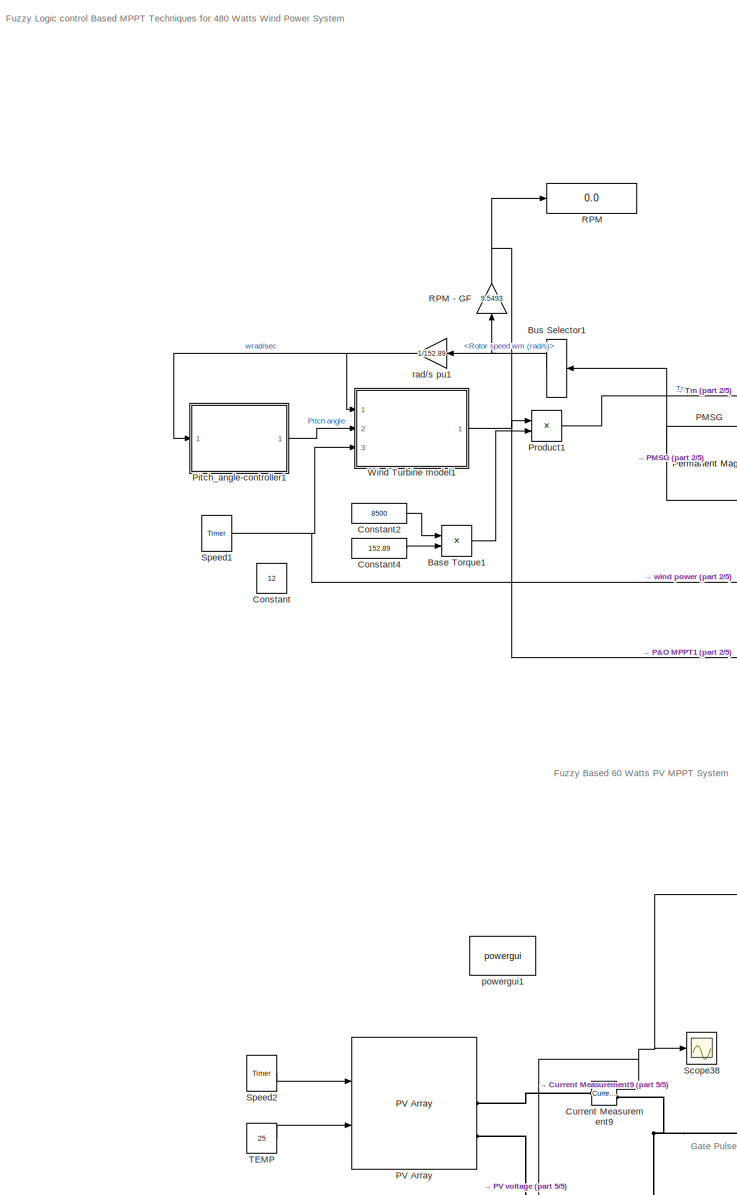
[diagram: root canvas - part 1/5, middle left region]
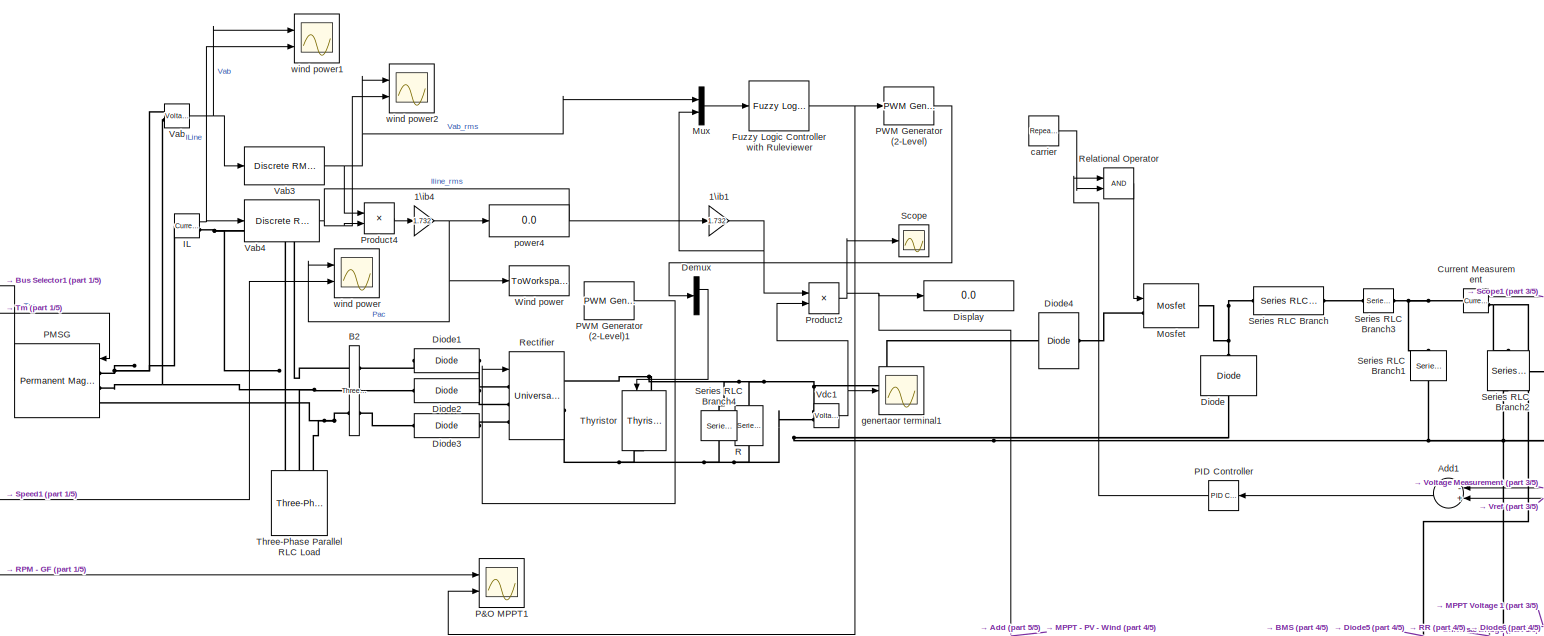
[diagram: root canvas - part 2/5, top center region]
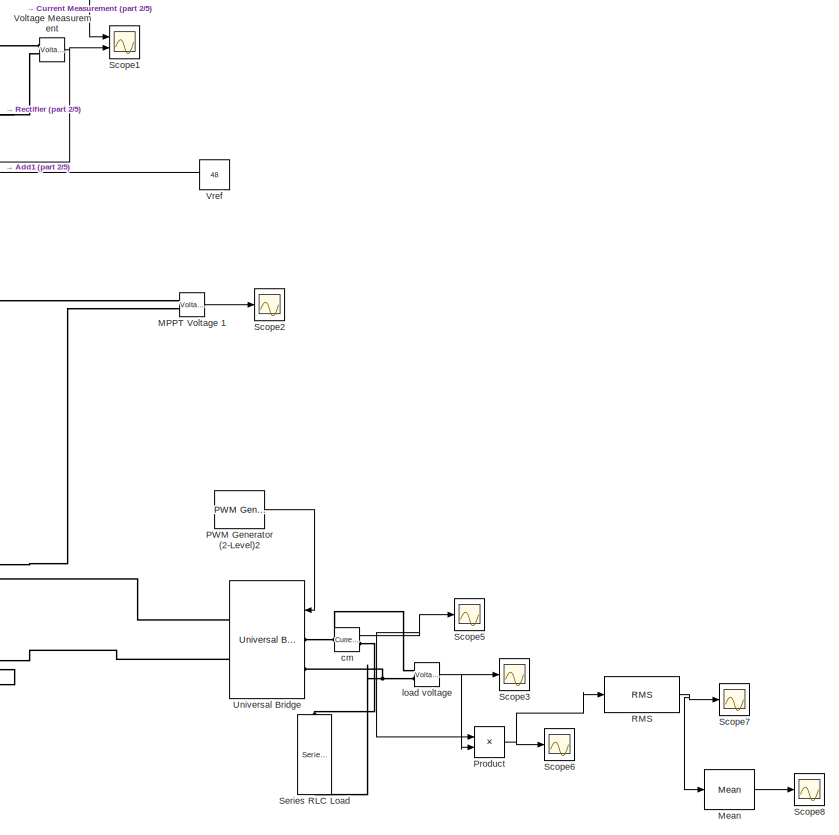
[diagram: root canvas - part 3/5, middle right region]
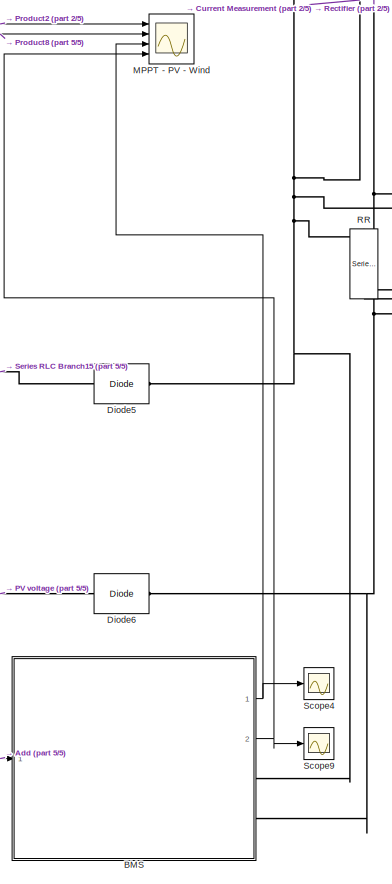
[diagram: root canvas - part 4/5, bottom center region]
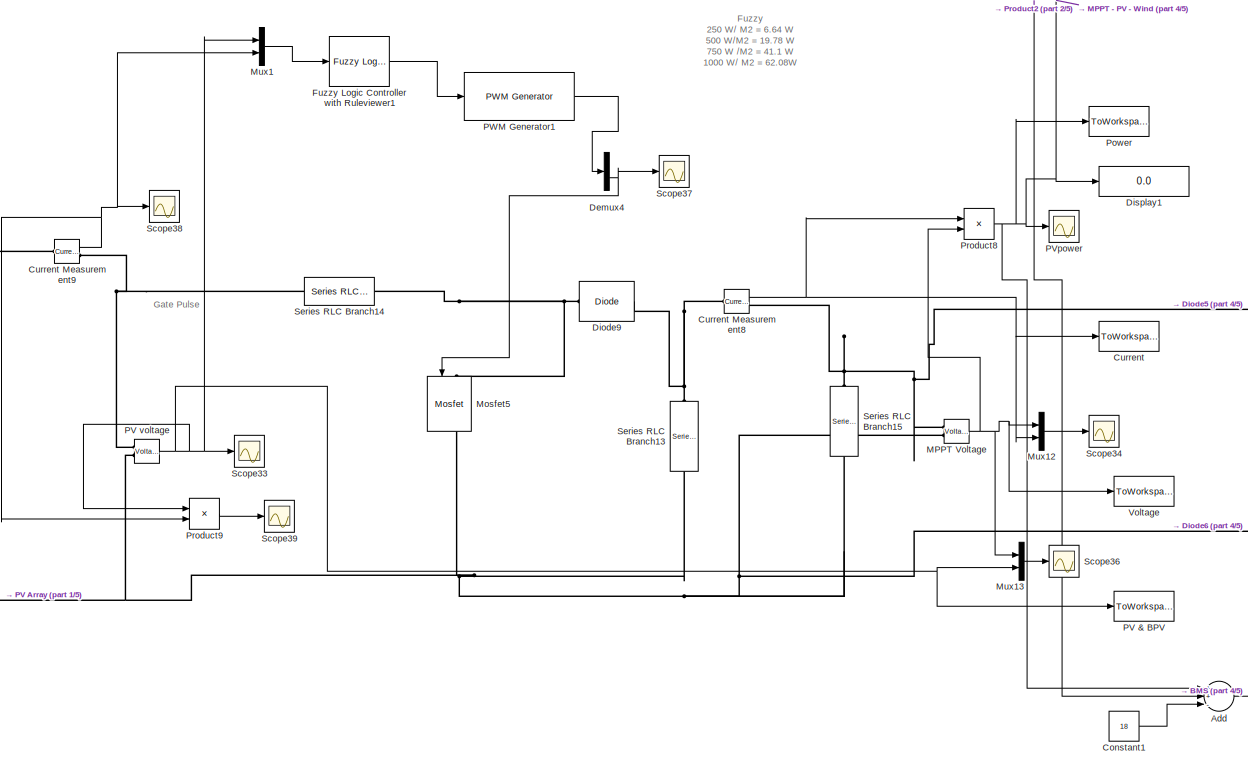
[diagram: root canvas - part 5/5, bottom center region]
MODEL slx_5a0d2a66a7e1
KIND model
CONFIG AbsTol = auto
CONFIG EnableMultiTasking = off
CONFIG FixedStep = auto
CONFIG MaxStep = 1e-4
CONFIG MinStep = auto
CONFIG RelTol = 1e-5
CONFIG SampleTimeConstraint = Unconstrained
CONFIG Solver = VariableStepAuto
CONFIG SolverName = VariableStepAuto
CONFIG StartTime = 0.0
CONFIG StopTime = 3
BLOCK [Gain] 1\ib1
  Gain = 1.732
BLOCK [Gain] 1\ib4
  Gain = 1.732
BLOCK [Sum] Add
  InputSameDT = off
  Inputs = ++-
  OutDataTypeStr = Inherit: Inherit via internal rule
  Ports = [3, 1]
  SaturateOnIntegerOverflow = off
BLOCK [Sum] Add1
  InputSameDT = off
  Inputs = -+
  OutDataTypeStr = Inherit: Inherit via internal rule
  Ports = [2, 1]
  SaturateOnIntegerOverflow = off
BLOCK [Reference] B2   REF=powerlib/Measurements/Three-Phase
V-I Measurement
  Ports = [0, 0, 0, 0, 0, 3, 3]
  SourceBlock = powerlib/Measurements/Three-Phase\nV-I Measurement
  SourceProductBaseCode = PS
  SourceProductName = Simscape Electrical
  SourceType = Three-Phase VI Measurement
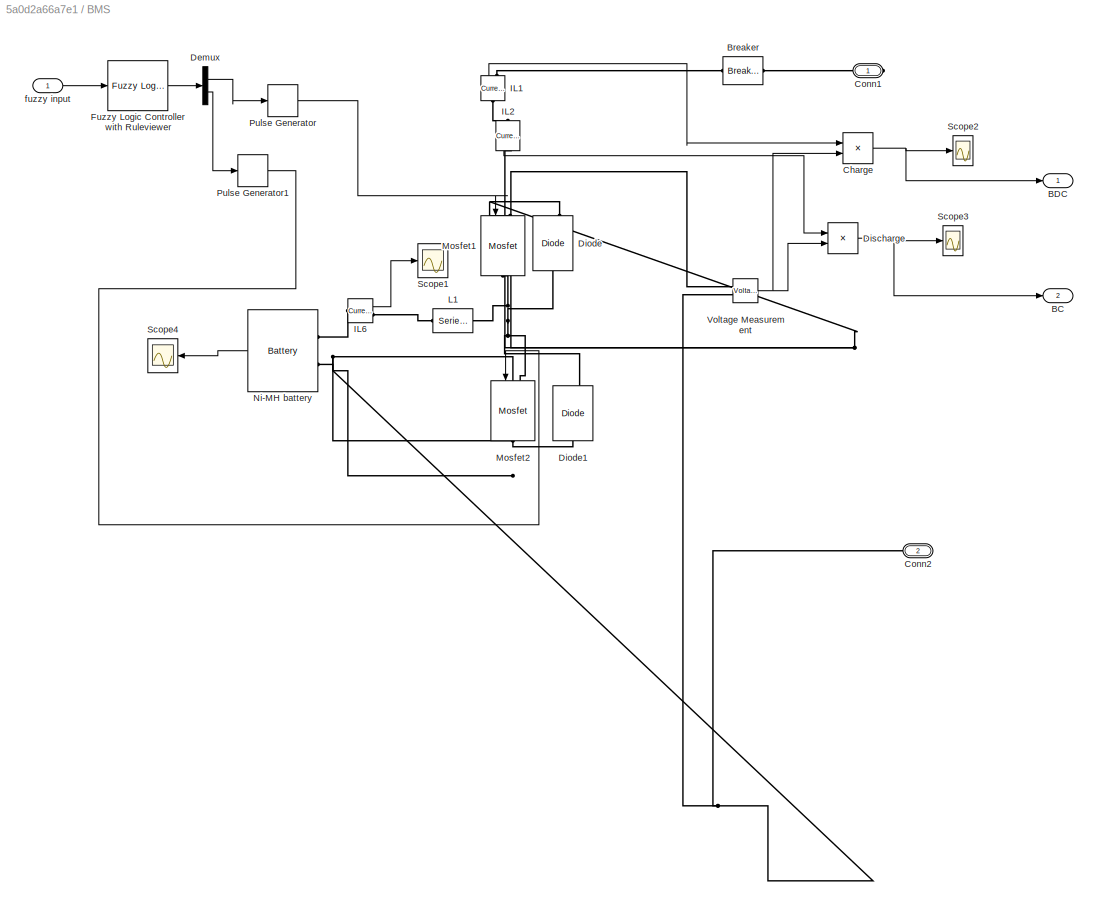
BLOCK [SubSystem] BMS 
  Ports = [1, 2, 0, 0, 0, 0, 2]
  RequestExecContextInheritance = off
BLOCK [Reference] BMS / Ni-MH battery   REF=electricdrivelib/Extra Sources/Battery
  Ports = [0, 1, 0, 0, 0, 2]
  SourceBlock = electricdrivelib/Extra Sources/Battery
  SourceProductBaseCode = PS
  SourceProductName = Simscape Electrical
  SourceType = Battery
BLOCK [Outport] BMS /BC 
  IconDisplay = Port number
  Port = 2
BLOCK [Outport] BMS /BDC
  IconDisplay = Port number
BLOCK [Reference] BMS /Breaker  REF=powerlib/Elements/Breaker
  Ports = [0, 0, 0, 0, 0, 1, 1]
  SourceBlock = powerlib/Elements/Breaker
  SourceProductBaseCode = PS
  SourceProductName = Simscape Electrical
  SourceType = Breaker
BLOCK [Product] BMS /Charge 
  InputSameDT = off
  OutDataTypeStr = Inherit: Inherit via internal rule
  Ports = [2, 1]
  RndMeth = Floor
  SaturateOnIntegerOverflow = off
BLOCK [PMIOPort] BMS /Conn1
  Side = Right
BLOCK [PMIOPort] BMS /Conn2
  Port = 2
  Side = Right
BLOCK [Demux] BMS /Demux
  DisplayOption = bar
  Outputs = 2
  Ports = [1, 2]
BLOCK [Reference] BMS /Diode  REF=powerlib/Power
Electronics/Diode
  Ports = [0, 1, 0, 0, 0, 1, 1]
  SourceBlock = powerlib/Power\nElectronics/Diode
  SourceProductBaseCode = PS
  SourceProductName = Simscape Electrical
  SourceType = Diode
BLOCK [Reference] BMS /Diode1  REF=powerlib/Power
Electronics/Diode
  Ports = [0, 1, 0, 0, 0, 1, 1]
  SourceBlock = powerlib/Power\nElectronics/Diode
  SourceProductBaseCode = PS
  SourceProductName = Simscape Electrical
  SourceType = Diode
BLOCK [Product] BMS /Discharge 
  InputSameDT = off
  OutDataTypeStr = Inherit: Inherit via internal rule
  Ports = [2, 1]
  RndMeth = Floor
  SaturateOnIntegerOverflow = off
BLOCK [Reference] BMS /Fuzzy Logic Controller with Ruleviewer  REF=fuzblock/Fuzzy Logic   (lib defined in mdl_858b3b3e7478)
Controller 
with Ruleviewer
  Ports = [1, 1]
  SourceBlock = fuzblock/Fuzzy Logic \nController \nwith Ruleviewer
  SourceProductBaseCode = FL
  SourceProductName = Fuzzy Logic Toolbox
  SourceType = Fuzzy Inference System
BLOCK [Reference] BMS /IL1  REF=powerlib/Measurements/Current Measurement
  Ports = [0, 1, 0, 0, 0, 1, 1]
  SourceBlock = powerlib/Measurements/Current Measurement
  SourceProductBaseCode = PS
  SourceProductName = Simscape Electrical
  SourceType = Current Measurement
BLOCK [Reference] BMS /IL2  REF=powerlib/Measurements/Current Measurement
  Ports = [0, 1, 0, 0, 0, 1, 1]
  SourceBlock = powerlib/Measurements/Current Measurement
  SourceProductBaseCode = PS
  SourceProductName = Simscape Electrical
  SourceType = Current Measurement
BLOCK [Reference] BMS /IL6  REF=powerlib/Measurements/Current Measurement
  Ports = [0, 1, 0, 0, 0, 1, 1]
  SourceBlock = powerlib/Measurements/Current Measurement
  SourceProductBaseCode = PS
  SourceProductName = Simscape Electrical
  SourceType = Current Measurement
BLOCK [Reference] BMS /L1  REF=powerlib/Elements/Series RLC Branch
  AttributesFormatString = \n
  Ports = [0, 0, 0, 0, 0, 1, 1]
  SourceBlock = powerlib/Elements/Series RLC Branch
  SourceProductBaseCode = PS
  SourceProductName = Simscape Electrical
  SourceType = Series RLC Branch
BLOCK [Reference] BMS /Mosfet1  REF=powerlib/Power
Electronics/Mosfet
  Ports = [1, 0, 0, 0, 0, 1, 1]
  SourceBlock = powerlib/Power\nElectronics/Mosfet
  SourceProductBaseCode = PS
  SourceProductName = Simscape Electrical
  SourceType = Mosfet
BLOCK [Reference] BMS /Mosfet2  REF=powerlib/Power
Electronics/Mosfet
  Ports = [1, 0, 0, 0, 0, 1, 1]
  SourceBlock = powerlib/Power\nElectronics/Mosfet
  SourceProductBaseCode = PS
  SourceProductName = Simscape Electrical
  SourceType = Mosfet
BLOCK [DiscretePulseGenerator] BMS /Pulse Generator
  Period = 10
  PhaseDelay = 2
  Ports = [1, 1]
  PulseType = Time based
  PulseWidth = 50
  TimeSource = Use external signal
BLOCK [DiscretePulseGenerator] BMS /Pulse Generator1
  Period = 10
  PhaseDelay = 1
  Ports = [1, 1]
  PulseType = Time based
  PulseWidth = 50
  TimeSource = Use external signal
BLOCK [Scope] BMS /Scope1
  Floating = off
  NumInputPorts = 1
  Ports = [1]
  ScopeSpecificationString = Simulink.scopes.TimeScopeBlockCfg('CurrentConfiguration', extmgr.ConfigurationSet(extmgr.Configuration('Core','General UI',true),extmgr.Configuration('Core','Source UI',true),extmgr.Configuration('Sources','WiredSimulink',true,'DataLoggingVariableName','ScopeData5'),extmgr.Configuration('Visuals','Time Domain',true,'SerializedDisplays',{struct('MinYLimReal','-0.36993','MaxYLimReal','2.4687','YLabe...<+1438ch>
BLOCK [Scope] BMS /Scope2
  Floating = off
  NumInputPorts = 1
  Ports = [1]
  ScopeSpecificationString = Simulink.scopes.TimeScopeBlockCfg('CurrentConfiguration', extmgr.ConfigurationSet(extmgr.Configuration('Core','General UI',true,'FigureColor',[1 1 1]),extmgr.Configuration('Core','Source UI',true),extmgr.Configuration('Sources','WiredSimulink',true,'DataLoggingVariableName','ScopeData1'),extmgr.Configuration('Visuals','Time Domain',true,'SerializedDisplays',{struct('MinYLimReal','-19.65052','MaxYL...<+1519ch>
BLOCK [Scope] BMS /Scope3
  Floating = off
  NumInputPorts = 1
  Ports = [1]
  ScopeSpecificationString = Simulink.scopes.TimeScopeBlockCfg('CurrentConfiguration', extmgr.ConfigurationSet(extmgr.Configuration('Core','General UI',true,'FigureColor',[1 1 1]),extmgr.Configuration('Core','Source UI',true),extmgr.Configuration('Sources','WiredSimulink',true,'DataLoggingVariableName','ScopeData4'),extmgr.Configuration('Visuals','Time Domain',true,'SerializedDisplays',{struct('MinYLimReal','-130.38357','MaxY...<+1530ch>
BLOCK [Scope] BMS /Scope4
  Floating = off
  NumInputPorts = 1
  Ports = [1]
  ScopeSpecificationString = Simulink.scopes.TimeScopeBlockCfg('CurrentConfiguration', extmgr.ConfigurationSet(extmgr.Configuration('Core','General UI',true),extmgr.Configuration('Core','Source UI',true),extmgr.Configuration('Sources','WiredSimulink',true,'DataLoggingVariableName','ScopeData1','DataLoggingSaveFormat','Array','DataLoggingDecimation','1','DataLoggingDecimateData',true),extmgr.Configuration('Visuals','Time Domai...<+1777ch>
BLOCK [Reference] BMS /Voltage Measurement  REF=powerlib/Measurements/Voltage Measurement
  Ports = [0, 1, 0, 0, 0, 2]
  SourceBlock = powerlib/Measurements/Voltage Measurement
  SourceProductBaseCode = PS
  SourceProductName = Simscape Electrical
  SourceType = Voltage Measurement
  UserDataPersistent = on
BLOCK [Inport] BMS /fuzzy input 
  IconDisplay = Port number
BLOCK [Product] Base Torque1
  InputSameDT = off
  Inputs = */
  OutDataTypeStr = Inherit: Inherit via internal rule
  Ports = [2, 1]
  SaturateOnIntegerOverflow = off
BLOCK [BusSelector] Bus Selector1
  OutputAsBus = off
  OutputSignals = Rotor speed wm (rad/s)
  Ports = [1, 1]
BLOCK [Constant] Constant
  Value = 12
BLOCK [Constant] Constant1
  Value = 18
BLOCK [Constant] Constant2
  Value = 8500
BLOCK [Constant] Constant4
  Value = 152.89
BLOCK [ToWorkspace] Current
  MaxDataPoints = inf
  Ports = [1]
  SampleTime = -1
  SaveFormat = Timeseries
  VariableName = cur
BLOCK [Reference] Current Measurement  REF=powerlib/Measurements/Current Measurement
  Ports = [0, 1, 0, 0, 0, 1, 1]
  SourceBlock = powerlib/Measurements/Current Measurement
  SourceProductBaseCode = PS
  SourceProductName = Simscape Electrical
  SourceType = Current Measurement
BLOCK [Reference] Current Measurement8  REF=powerlib/Measurements/Current Measurement
  Ports = [0, 1, 0, 0, 0, 1, 1]
  SourceBlock = powerlib/Measurements/Current Measurement
  SourceProductBaseCode = PS
  SourceProductName = Simscape Electrical
  SourceType = Current Measurement
BLOCK [Reference] Current Measurement9  REF=powerlib/Measurements/Current Measurement
  Ports = [0, 1, 0, 0, 0, 1, 1]
  SourceBlock = powerlib/Measurements/Current Measurement
  SourceProductBaseCode = PS
  SourceProductName = Simscape Electrical
  SourceType = Current Measurement
BLOCK [Demux] Demux
  DisplayOption = bar
  Outputs = 2
  Ports = [1, 2]
BLOCK [Demux] Demux4
  DisplayOption = bar
  Outputs = 2
  Ports = [1, 2]
BLOCK [Reference] Diode  REF=powerlib/Power
Electronics/Diode
  Ports = [0, 0, 0, 0, 0, 1, 1]
  SourceBlock = powerlib/Power\nElectronics/Diode
  SourceProductBaseCode = PS
  SourceProductName = Simscape Electrical
  SourceType = Diode
BLOCK [Reference] Diode1  REF=powerlib/Power
Electronics/Diode
  Ports = [0, 0, 0, 0, 0, 1, 1]
  SourceBlock = powerlib/Power\nElectronics/Diode
  SourceProductBaseCode = PS
  SourceProductName = Simscape Electrical
  SourceType = Diode
BLOCK [Reference] Diode2  REF=powerlib/Power
Electronics/Diode
  Ports = [0, 0, 0, 0, 0, 1, 1]
  SourceBlock = powerlib/Power\nElectronics/Diode
  SourceProductBaseCode = PS
  SourceProductName = Simscape Electrical
  SourceType = Diode
BLOCK [Reference] Diode3  REF=powerlib/Power
Electronics/Diode
  Ports = [0, 0, 0, 0, 0, 1, 1]
  SourceBlock = powerlib/Power\nElectronics/Diode
  SourceProductBaseCode = PS
  SourceProductName = Simscape Electrical
  SourceType = Diode
BLOCK [Reference] Diode4  REF=powerlib/Power
Electronics/Diode
  Ports = [0, 0, 0, 0, 0, 1, 1]
  SourceBlock = powerlib/Power\nElectronics/Diode
  SourceProductBaseCode = PS
  SourceProductName = Simscape Electrical
  SourceType = Diode
BLOCK [Reference] Diode5  REF=powerlib/Power
Electronics/Diode
  Ports = [0, 0, 0, 0, 0, 1, 1]
  SourceBlock = powerlib/Power\nElectronics/Diode
  SourceProductBaseCode = PS
  SourceProductName = Simscape Electrical
  SourceType = Diode
BLOCK [Reference] Diode6  REF=powerlib/Power
Electronics/Diode
  Ports = [0, 0, 0, 0, 0, 1, 1]
  SourceBlock = powerlib/Power\nElectronics/Diode
  SourceProductBaseCode = PS
  SourceProductName = Simscape Electrical
  SourceType = Diode
BLOCK [Reference] Diode9  REF=powerlib/Power
Electronics/Diode
  Ports = [0, 0, 0, 0, 0, 1, 1]
  SourceBlock = powerlib/Power\nElectronics/Diode
  SourceProductBaseCode = PS
  SourceProductName = Simscape Electrical
  SourceType = Diode
BLOCK [Display] Display
  Decimation = 1
  Ports = [1]
BLOCK [Display] Display1
  Decimation = 1
  Ports = [1]
BLOCK [Reference] Fuzzy Logic Controller with Ruleviewer  REF=fuzblock/Fuzzy Logic   (lib defined in mdl_858b3b3e7478)
Controller 
with Ruleviewer
  Ports = [1, 1]
  SourceBlock = fuzblock/Fuzzy Logic \nController \nwith Ruleviewer
  SourceProductBaseCode = FL
  SourceProductName = Fuzzy Logic Toolbox
  SourceType = Fuzzy Inference System
BLOCK [Reference] Fuzzy Logic Controller with Ruleviewer1  REF=fuzblock/Fuzzy Logic   (lib defined in mdl_858b3b3e7478)
Controller 
with Ruleviewer
  Ports = [1, 1]
  SourceBlock = fuzblock/Fuzzy Logic \nController \nwith Ruleviewer
  SourceProductBaseCode = FL
  SourceProductName = Fuzzy Logic Toolbox
  SourceType = Fuzzy Inference System
BLOCK [Reference] IL  REF=powerlib/Measurements/Current Measurement
  Ports = [0, 1, 0, 0, 0, 1, 1]
  SourceBlock = powerlib/Measurements/Current Measurement
  SourceProductBaseCode = PS
  SourceProductName = Simscape Electrical
  SourceType = Current Measurement
BLOCK [Scope] MPPT - PV - Wind 
  Floating = off
  NumInputPorts = 4
  Ports = [4]
  ScopeSpecificationString = Simulink.scopes.TimeScopeBlockCfg('CurrentConfiguration', extmgr.ConfigurationSet(extmgr.Configuration('Core','General UI',true,'FigureColor',[1 1 1]),extmgr.Configuration('Core','Source UI',true),extmgr.Configuration('Sources','WiredSimulink',true,'DataLogging',true,'DataLoggingVariableName','ScopeData2','DataLoggingSaveFormat','StructureWithTime','SampleTime','100e-6','DataLoggingDecimation','1'...<+4601ch>
BLOCK [Reference] MPPT Voltage   REF=powerlib/Measurements/Voltage Measurement
  Ports = [0, 1, 0, 0, 0, 2]
  SourceBlock = powerlib/Measurements/Voltage Measurement
  SourceProductBaseCode = PS
  SourceProductName = Simscape Electrical
  SourceType = Voltage Measurement
BLOCK [Reference] MPPT Voltage 1  REF=powerlib/Measurements/Voltage Measurement
  Ports = [0, 1, 0, 0, 0, 2]
  SourceBlock = powerlib/Measurements/Voltage Measurement
  SourceProductBaseCode = PS
  SourceProductName = Simscape Electrical
  SourceType = Voltage Measurement
BLOCK [Reference] Mean  REF=powerlib_meascontrol/Measurements/Mean
  Ports = [1, 1]
  SourceBlock = powerlib_meascontrol/Measurements/Mean
  SourceProductBaseCode = PS
  SourceProductName = Simscape Electrical
  SourceType = Mean
BLOCK [Reference] Mosfet  REF=powerlib/Power
Electronics/Mosfet
  Ports = [1, 0, 0, 0, 0, 1, 1]
  SourceBlock = powerlib/Power\nElectronics/Mosfet
  SourceProductBaseCode = PS
  SourceProductName = Simscape Electrical
  SourceType = Mosfet
BLOCK [Reference] Mosfet5  REF=powerlib/Power
Electronics/Mosfet
  Ports = [1, 1, 0, 0, 0, 1, 1]
  SourceBlock = powerlib/Power\nElectronics/Mosfet
  SourceProductBaseCode = PS
  SourceProductName = Simscape Electrical
  SourceType = Mosfet
BLOCK [Mux] Mux
  DisplayOption = bar
  Inputs = 2
  Ports = [2, 1]
BLOCK [Mux] Mux1
  DisplayOption = bar
  Inputs = 2
  Ports = [2, 1]
BLOCK [Mux] Mux12
  DisplayOption = bar
  Inputs = 2
  Ports = [2, 1]
BLOCK [Mux] Mux13
  DisplayOption = bar
  Inputs = 2
  Ports = [2, 1]
BLOCK [Scope] P&O MPPT1
  Floating = off
  NumInputPorts = 2
  Ports = [2]
  ScopeSpecificationString = Simulink.scopes.TimeScopeBlockCfg('CurrentConfiguration', extmgr.ConfigurationSet(extmgr.Configuration('Core','General UI',true,'FigureColor',[1 1 1]),extmgr.Configuration('Core','Source UI',true),extmgr.Configuration('Sources','WiredSimulink',true,'DataLogging',true,'DataLoggingVariableName','ScopeData1','DataLoggingSaveFormat','StructureWithTime','SampleTime','100e-6','DataLoggingDecimation','1'...<+3546ch>
BLOCK [Reference] PID Controller  REF=simulink_need_slupdate/PID Controller
  Ports = [1, 1]
  SourceBlock = simulink_need_slupdate/PID Controller
  SourceProductBaseCode = SL
  SourceProductName = Simulink
  SourceType = PID Controller
BLOCK [Reference] PMSG  REF=powerlib/Machines/Permanent Magnet
Synchronous Machine
  Ports = [1, 1, 0, 0, 0, 3]
  SourceBlock = powerlib/Machines/Permanent Magnet\nSynchronous Machine
  SourceProductBaseCode = PS
  SourceProductName = Simscape Electrical
  SourceType = Permanent Magnet Synchronous Machine
BLOCK [ToWorkspace] PV & BPV
  MaxDataPoints = inf
  Ports = [1]
  SampleTime = -1
  SaveFormat = Timeseries
  VariableName = vs
BLOCK [Reference] PV Array  REF=re_lib/Solar/PV Array
  Ports = [2, 1, 0, 0, 0, 0, 2]
  SourceBlock = re_lib/Solar/PV Array
  SourceProductBaseCode = PS
  SourceProductName = Simscape Electrical
  SourceType = PV array
BLOCK [Reference] PV voltage   REF=powerlib/Measurements/Voltage Measurement
  Ports = [0, 1, 0, 0, 0, 2]
  SourceBlock = powerlib/Measurements/Voltage Measurement
  SourceProductBaseCode = PS
  SourceProductName = Simscape Electrical
  SourceType = Voltage Measurement
BLOCK [Scope] PVpower
  Floating = off
  NumInputPorts = 1
  Ports = [1]
  ScopeSpecificationString = Simulink.scopes.TimeScopeBlockCfg('CurrentConfiguration', extmgr.ConfigurationSet(extmgr.Configuration('Core','General UI',true,'FigureColor',[1 1 1]),extmgr.Configuration('Core','Source UI',true),extmgr.Configuration('Sources','WiredSimulink',true,'DataLoggingVariableName','ScopeData1','DataLoggingSaveFormat','StructureWithTime','DataLoggingMaxPoints','50000000','DataLoggingLimitDataPoints',true,...<+3004ch>
BLOCK [Reference] PWM Generator (2-Level)  REF=powerlib_meascontrol/Pulse & Signal
Generators/PWM Generator
(2-Level)
  Ports = [1, 1]
  SourceBlock = powerlib_meascontrol/Pulse & Signal\nGenerators/PWM Generator\n(2-Level)
  SourceProductBaseCode = PS
  SourceProductName = Simscape Electrical
  SourceType = PWM Generator (2-Level)
BLOCK [Reference] PWM Generator (2-Level)1  REF=powerlib_meascontrol/Pulse & Signal
Generators/PWM Generator
(2-Level)
  Ports = [0, 1]
  SourceBlock = powerlib_meascontrol/Pulse & Signal\nGenerators/PWM Generator\n(2-Level)
  SourceProductBaseCode = PS
  SourceProductName = Simscape Electrical
  SourceType = PWM Generator (2-Level)
BLOCK [Reference] PWM Generator (2-Level)2  REF=powerlib_meascontrol/Pulse & Signal
Generators/PWM Generator
(2-Level)
  Ports = [0, 1]
  SourceBlock = powerlib_meascontrol/Pulse & Signal\nGenerators/PWM Generator\n(2-Level)
  SourceProductBaseCode = PS
  SourceProductName = Simscape Electrical
  SourceType = PWM Generator (2-Level)
BLOCK [Reference] PWM Generator1  REF=powerlib_extras/Control 
Blocks/PWM Generator
  Ports = [1, 1]
  SourceBlock = powerlib_extras/Control \nBlocks/PWM Generator
  SourceProductBaseCode = PS
  SourceProductName = Simscape Electrical
  SourceType = PWM Generator
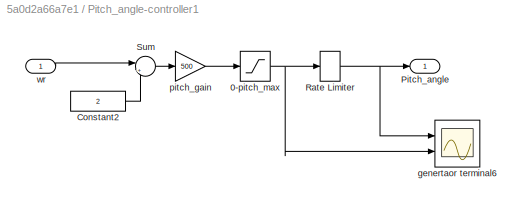
BLOCK [SubSystem] Pitch_angle-controller1
  Ports = [1, 1]
  RequestExecContextInheritance = off
BLOCK [Saturate] Pitch_angle-controller1/0-pitch_max
  InputPortMap = u0
  LowerLimit = 0
  Ports = [1, 1]
  UpperLimit = 45
BLOCK [Constant] Pitch_angle-controller1/Constant2
  Value = 2
BLOCK [Outport] Pitch_angle-controller1/Pitch_angle
  IconDisplay = Port number
BLOCK [RateLimiter] Pitch_angle-controller1/Rate Limiter   
  FallingSlewLimit = -2
  RisingSlewLimit = 2
BLOCK [Sum] Pitch_angle-controller1/Sum
  IconShape = round
  InputSameDT = off
  Inputs = |+-
  OutDataTypeStr = Inherit: Inherit via internal rule
  Ports = [2, 1]
BLOCK [Scope] Pitch_angle-controller1/genertaor terminal6
  Floating = off
  NumInputPorts = 2
  Ports = [2]
  ScopeSpecificationString = Simulink.scopes.TimeScopeBlockCfg('CurrentConfiguration', extmgr.ConfigurationSet(extmgr.Configuration('Core','General UI',true),extmgr.Configuration('Core','Source UI',true),extmgr.Configuration('Sources','WiredSimulink',true,'DataLogging',true,'DataLoggingVariableName','ScopeData9','DataLoggingSaveFormat','StructureWithTime','SampleTime','100e-6','DataLoggingDecimation','1','DataLoggingDecimateD...<+2358ch>
BLOCK [Gain] Pitch_angle-controller1/pitch_gain
  Gain = 500
BLOCK [Inport] Pitch_angle-controller1/wr
  IconDisplay = Port number
BLOCK [ToWorkspace] Power
  MaxDataPoints = inf
  Ports = [1]
  SampleTime = -1
  SaveFormat = Timeseries
  VariableName = po
BLOCK [Product] Product
  InputSameDT = off
  OutDataTypeStr = Inherit: Inherit via internal rule
  Ports = [2, 1]
  RndMeth = Floor
  SaturateOnIntegerOverflow = off
BLOCK [Product] Product1
  InputSameDT = off
  OutDataTypeStr = Inherit: Inherit via internal rule
  Ports = [2, 1]
  SaturateOnIntegerOverflow = off
BLOCK [Product] Product2
  InputSameDT = off
  OutDataTypeStr = Inherit: Inherit via internal rule
  Ports = [2, 1]
  SaturateOnIntegerOverflow = off
BLOCK [Product] Product4
  InputSameDT = off
  OutDataTypeStr = Inherit: Inherit via internal rule
  Ports = [2, 1]
  SaturateOnIntegerOverflow = off
BLOCK [Product] Product8
  InputSameDT = off
  OutDataTypeStr = Inherit: Inherit via internal rule
  Ports = [2, 1]
  SaturateOnIntegerOverflow = off
BLOCK [Product] Product9
  InputSameDT = off
  OutDataTypeStr = Inherit: Inherit via internal rule
  Ports = [2, 1]
  SaturateOnIntegerOverflow = off
BLOCK [Reference] R  REF=powerlib/Elements/Series RLC Branch
  Ports = [0, 0, 0, 0, 0, 1, 1]
  SourceBlock = powerlib/Elements/Series RLC Branch
  SourceProductBaseCode = PS
  SourceProductName = Simscape Electrical
  SourceType = Series RLC Branch
BLOCK [Reference] RMS  REF=dspstat3/RMS
  Ports = [1, 1]
  SourceBlock = dspstat3/RMS
  SourceProductBaseCode = DS
  SourceProductName = DSP System Toolbox
  SourceType = RMS
  UserDataPersistent = on
BLOCK [Display] RPM 
  Decimation = 1
  Ports = [1]
BLOCK [Gain] RPM - GF
  Gain = 9.5493
BLOCK [Reference] RR  REF=powerlib/Elements/Series RLC Branch
  Ports = [0, 0, 0, 0, 0, 1, 1]
  SourceBlock = powerlib/Elements/Series RLC Branch
  SourceProductBaseCode = PS
  SourceProductName = Simscape Electrical
  SourceType = Series RLC Branch
BLOCK [Reference] Rectifier  REF=powerlib/Power
Electronics/Universal Bridge
  AttributesFormatString = \n
  Ports = [1, 0, 0, 0, 0, 3, 2]
  SourceBlock = powerlib/Power\nElectronics/Universal Bridge
  SourceProductBaseCode = PS
  SourceProductName = Simscape Electrical
  SourceType = Universal Bridge
BLOCK [RelationalOperator] Relational Operator
  InputSameDT = off
  OutDataTypeStr = boolean
  Ports = [2, 1]
BLOCK [Scope] Scope
  Floating = off
  NumInputPorts = 1
  Ports = [1]
  ScopeSpecificationString = Simulink.scopes.TimeScopeBlockCfg('CurrentConfiguration', extmgr.ConfigurationSet(extmgr.Configuration('Core','General UI',true,'FigureColor',[1 1 1]),extmgr.Configuration('Core','Source UI',true),extmgr.Configuration('Sources','WiredSimulink',true,'DataLoggingVariableName','ScopeData2'),extmgr.Configuration('Visuals','Time Domain',true,'SerializedDisplays',{struct('MinYLimReal','-1.18265','MaxYLi...<+1697ch>
BLOCK [Scope] Scope1
  Floating = off
  NumInputPorts = 2
  Ports = [2]
  ScopeSpecificationString = Simulink.scopes.TimeScopeBlockCfg('CurrentConfiguration', extmgr.ConfigurationSet(extmgr.Configuration('Core','General UI',true,'FigureColor',[1 1 1]),extmgr.Configuration('Core','Source UI',true),extmgr.Configuration('Sources','WiredSimulink',true,'DataLoggingSaveFormat','StructureWithTime','DataLoggingMaxPoints','5000000','DataLoggingDecimation','1','DataLoggingDecimateData',true,'DataLoggingVar...<+2565ch>
BLOCK [Scope] Scope2
  Floating = off
  NumInputPorts = 1
  Ports = [1]
  ScopeSpecificationString = Simulink.scopes.TimeScopeBlockCfg('CurrentConfiguration', extmgr.ConfigurationSet(extmgr.Configuration('Core','General UI',true,'FigureColor',[1 1 1]),extmgr.Configuration('Core','Source UI',true),extmgr.Configuration('Sources','WiredSimulink',true,'DataLoggingVariableName','ScopeData1','DataLoggingSaveFormat','StructureWithTime','DataLoggingMaxPoints','50000000','DataLoggingLimitDataPoints',true,...<+2905ch>
BLOCK [Scope] Scope3
  Floating = off
  NumInputPorts = 1
  Ports = [1]
  ScopeSpecificationString = Simulink.scopes.TimeScopeBlockCfg('CurrentConfiguration', extmgr.ConfigurationSet(extmgr.Configuration('Core','General UI',true,'FigureColor',[1 1 1]),extmgr.Configuration('Core','Source UI',true),extmgr.Configuration('Sources','WiredSimulink',true,'DataLoggingVariableName','ScopeData3','DataLoggingSaveFormat','StructureWithTime','DataLoggingMaxPoints','50000000','DataLoggingLimitDataPoints',true,...<+2861ch>
BLOCK [Scope] Scope33
  Floating = off
  NumInputPorts = 1
  Ports = [1]
  ScopeSpecificationString = Simulink.scopes.TimeScopeBlockCfg('CurrentConfiguration', extmgr.ConfigurationSet(extmgr.Configuration('Core','General UI',true,'FigureColor',[1 1 1]),extmgr.Configuration('Core','Source UI',true),extmgr.Configuration('Sources','WiredSimulink',true,'DataLoggingSaveFormat','StructureWithTime','DataLoggingMaxPoints','50000000','DataLoggingLimitDataPoints',true,'DataLoggingDecimation','1','DataLoggin...<+2905ch>
BLOCK [Scope] Scope34
  Floating = off
  NumInputPorts = 1
  Ports = [1]
  ScopeSpecificationString = Simulink.scopes.TimeScopeBlockCfg('CurrentConfiguration', extmgr.ConfigurationSet(extmgr.Configuration('Core','General UI',true,'FigureColor',[1 1 1]),extmgr.Configuration('Core','Source UI',true),extmgr.Configuration('Sources','WiredSimulink',true,'DataLoggingVariableName','ScopeData3','DataLoggingSaveFormat','StructureWithTime','DataLoggingMaxPoints','50000000','DataLoggingLimitDataPoints',true,...<+2922ch>
BLOCK [Scope] Scope36
  Floating = off
  NumInputPorts = 1
  Ports = [1]
  ScopeSpecificationString = Simulink.scopes.TimeScopeBlockCfg('CurrentConfiguration', extmgr.ConfigurationSet(extmgr.Configuration('Core','General UI',true,'FigureColor',[1 1 1]),extmgr.Configuration('Core','Source UI',true),extmgr.Configuration('Sources','WiredSimulink',true,'DataLoggingVariableName','ScopeData4','DataLoggingSaveFormat','StructureWithTime','DataLoggingMaxPoints','50000000','DataLoggingLimitDataPoints',true,...<+2883ch>
BLOCK [Scope] Scope37
  Floating = off
  NumInputPorts = 1
  Ports = [1]
  ScopeSpecificationString = Simulink.scopes.TimeScopeBlockCfg('CurrentConfiguration', extmgr.ConfigurationSet(extmgr.Configuration('Core','General UI',true,'FigureColor',[1 1 1]),extmgr.Configuration('Core','Source UI',true),extmgr.Configuration('Sources','WiredSimulink',true,'DataLoggingVariableName','ScopeData5','DataLoggingSaveFormat','StructureWithTime','DataLoggingMaxPoints','50000000','DataLoggingLimitDataPoints',true,...<+2849ch>
BLOCK [Scope] Scope38
  Floating = off
  NumInputPorts = 1
  Ports = [1]
  ScopeSpecificationString = Simulink.scopes.TimeScopeBlockCfg('CurrentConfiguration', extmgr.ConfigurationSet(extmgr.Configuration('Core','General UI',true,'FigureColor',[1 1 1]),extmgr.Configuration('Core','Source UI',true),extmgr.Configuration('Sources','WiredSimulink',true,'DataLoggingVariableName','ScopeData6','DataLoggingSaveFormat','StructureWithTime','DataLoggingMaxPoints','50000000','DataLoggingLimitDataPoints',true,...<+2844ch>
BLOCK [Scope] Scope39
  Floating = off
  NumInputPorts = 1
  Ports = [1]
  ScopeSpecificationString = Simulink.scopes.TimeScopeBlockCfg('CurrentConfiguration', extmgr.ConfigurationSet(extmgr.Configuration('Core','General UI',true,'FigureColor',[1 1 1]),extmgr.Configuration('Core','Source UI',true),extmgr.Configuration('Sources','WiredSimulink',true,'DataLoggingVariableName','ScopeData7','DataLoggingSaveFormat','StructureWithTime','DataLoggingMaxPoints','50000000','DataLoggingLimitDataPoints',true,...<+2638ch>
BLOCK [Scope] Scope4
  Floating = off
  NumInputPorts = 1
  Ports = [1]
  ScopeSpecificationString = Simulink.scopes.TimeScopeBlockCfg('CurrentConfiguration', extmgr.ConfigurationSet(extmgr.Configuration('Core','General UI',true,'FigureColor',[1 1 1]),extmgr.Configuration('Core','Source UI',true),extmgr.Configuration('Sources','WiredSimulink',true,'DataLoggingVariableName','ScopeData4','DataLoggingSaveFormat','StructureWithTime','DataLoggingMaxPoints','50000000','DataLoggingLimitDataPoints',true,...<+2860ch>
BLOCK [Scope] Scope5
  Floating = off
  NumInputPorts = 1
  Ports = [1]
  ScopeSpecificationString = Simulink.scopes.TimeScopeBlockCfg('CurrentConfiguration', extmgr.ConfigurationSet(extmgr.Configuration('Core','General UI',true,'FigureColor',[1 1 1]),extmgr.Configuration('Core','Source UI',true),extmgr.Configuration('Sources','WiredSimulink',true,'DataLoggingVariableName','ScopeData1','DataLoggingSaveFormat','StructureWithTime','DataLoggingMaxPoints','50000000','DataLoggingLimitDataPoints',true,...<+2848ch>
BLOCK [Scope] Scope6
  Floating = off
  NumInputPorts = 1
  Ports = [1]
  ScopeSpecificationString = Simulink.scopes.TimeScopeBlockCfg('CurrentConfiguration', extmgr.ConfigurationSet(extmgr.Configuration('Core','General UI',true,'FigureColor',[1 1 1]),extmgr.Configuration('Core','Source UI',true),extmgr.Configuration('Sources','WiredSimulink',true,'DataLoggingVariableName','ScopeData2','DataLoggingSaveFormat','StructureWithTime','DataLoggingMaxPoints','50000000','DataLoggingLimitDataPoints',true,...<+2862ch>
BLOCK [Scope] Scope7
  Floating = off
  NumInputPorts = 1
  Ports = [1]
  ScopeSpecificationString = Simulink.scopes.TimeScopeBlockCfg('CurrentConfiguration', extmgr.ConfigurationSet(extmgr.Configuration('Core','General UI',true,'FigureColor',[1 1 1]),extmgr.Configuration('Core','Source UI',true),extmgr.Configuration('Sources','WiredSimulink',true,'DataLoggingVariableName','ScopeData3','DataLoggingSaveFormat','StructureWithTime','DataLoggingMaxPoints','50000000','DataLoggingLimitDataPoints',true,...<+2858ch>
BLOCK [Scope] Scope8
  Floating = off
  NumInputPorts = 1
  Ports = [1]
  ScopeSpecificationString = Simulink.scopes.TimeScopeBlockCfg('CurrentConfiguration', extmgr.ConfigurationSet(extmgr.Configuration('Core','General UI',true,'FigureColor',[1 1 1]),extmgr.Configuration('Core','Source UI',true),extmgr.Configuration('Sources','WiredSimulink',true,'DataLoggingVariableName','ScopeData4','DataLoggingSaveFormat','StructureWithTime','DataLoggingMaxPoints','50000000','DataLoggingLimitDataPoints',true,...<+2851ch>
BLOCK [Scope] Scope9
  Floating = off
  NumInputPorts = 1
  Ports = [1]
  ScopeSpecificationString = Simulink.scopes.TimeScopeBlockCfg('CurrentConfiguration', extmgr.ConfigurationSet(extmgr.Configuration('Core','General UI',true,'FigureColor',[1 1 1]),extmgr.Configuration('Core','Source UI',true),extmgr.Configuration('Sources','WiredSimulink',true,'DataLoggingVariableName','ScopeData2','DataLoggingSaveFormat','StructureWithTime','DataLoggingMaxPoints','50000000','DataLoggingLimitDataPoints',true,...<+2860ch>
BLOCK [Reference] Series RLC Branch  REF=powerlib/Elements/Series RLC Branch
  Ports = [0, 0, 0, 0, 0, 1, 1]
  SourceBlock = powerlib/Elements/Series RLC Branch
  SourceProductBaseCode = PS
  SourceProductName = Simscape Electrical
  SourceType = Series RLC Branch
BLOCK [Reference] Series RLC Branch1  REF=powerlib/Elements/Series RLC Branch
  Ports = [0, 0, 0, 0, 0, 1, 1]
  SourceBlock = powerlib/Elements/Series RLC Branch
  SourceProductBaseCode = PS
  SourceProductName = Simscape Electrical
  SourceType = Series RLC Branch
BLOCK [Reference] Series RLC Branch13  REF=powerlib/Elements/Series RLC Branch
  Ports = [0, 0, 0, 0, 0, 1, 1]
  SourceBlock = powerlib/Elements/Series RLC Branch
  SourceProductBaseCode = PS
  SourceProductName = Simscape Electrical
  SourceType = Series RLC Branch
BLOCK [Reference] Series RLC Branch14  REF=powerlib/Elements/Series RLC Branch
  Ports = [0, 0, 0, 0, 0, 1, 1]
  SourceBlock = powerlib/Elements/Series RLC Branch
  SourceProductBaseCode = PS
  SourceProductName = Simscape Electrical
  SourceType = Series RLC Branch
BLOCK [Reference] Series RLC Branch15  REF=powerlib/Elements/Series RLC Branch
  Ports = [0, 0, 0, 0, 0, 1, 1]
  SourceBlock = powerlib/Elements/Series RLC Branch
  SourceProductBaseCode = PS
  SourceProductName = Simscape Electrical
  SourceType = Series RLC Branch
BLOCK [Reference] Series RLC Branch2  REF=powerlib/Elements/Series RLC Branch
  Ports = [0, 0, 0, 0, 0, 1, 1]
  SourceBlock = powerlib/Elements/Series RLC Branch
  SourceProductBaseCode = PS
  SourceProductName = Simscape Electrical
  SourceType = Series RLC Branch
BLOCK [Reference] Series RLC Branch3  REF=powerlib/Elements/Series RLC Branch
  Ports = [0, 0, 0, 0, 0, 1, 1]
  SourceBlock = powerlib/Elements/Series RLC Branch
  SourceProductBaseCode = PS
  SourceProductName = Simscape Electrical
  SourceType = Series RLC Branch
BLOCK [Reference] Series RLC Branch4  REF=powerlib/Elements/Series RLC Branch
  Ports = [0, 0, 0, 0, 0, 1, 1]
  SourceBlock = powerlib/Elements/Series RLC Branch
  SourceProductBaseCode = PS
  SourceProductName = Simscape Electrical
  SourceType = Series RLC Branch
BLOCK [Reference] Series RLC Load  REF=powerlib/Elements/Series RLC Load
  AttributesFormatString = \n
  Ports = [0, 0, 0, 0, 0, 1, 1]
  SourceBlock = powerlib/Elements/Series RLC Load
  SourceProductBaseCode = PS
  SourceProductName = Simscape Electrical
  SourceType = Series RLC Load
BLOCK [Reference] Speed1  REF=powerlib_extras/Control 
Blocks/Timer
  Ports = [0, 1]
  SourceBlock = powerlib_extras/Control \nBlocks/Timer
  SourceProductBaseCode = PS
  SourceProductName = Simscape Electrical
  SourceType = Timer
BLOCK [Reference] Speed2  REF=powerlib_extras/Control 
Blocks/Timer
  Ports = [0, 1]
  SourceBlock = powerlib_extras/Control \nBlocks/Timer
  SourceProductBaseCode = PS
  SourceProductName = Simscape Electrical
  SourceType = Timer
BLOCK [Constant] TEMP
  Value = 25
BLOCK [Reference] Three-Phase Parallel RLC Load  REF=powerlib/Elements/Three-Phase
Parallel RLC Load
  AttributesFormatString = \n
  Ports = [0, 0, 0, 0, 0, 3]
  SourceBlock = powerlib/Elements/Three-Phase\nParallel RLC Load
  SourceProductBaseCode = PS
  SourceProductName = Simscape Electrical
  SourceType = Three-Phase Parallel RLC Load
BLOCK [Reference] Thyristor  REF=powerlib/Power
Electronics/Thyristor
  Ports = [1, 0, 0, 0, 0, 1, 1]
  SourceBlock = powerlib/Power\nElectronics/Thyristor
  SourceProductBaseCode = PS
  SourceProductName = Simscape Electrical
  SourceType = Thyristor
BLOCK [Reference] Universal Bridge  REF=powerlib/Power
Electronics/Universal Bridge
  Ports = [1, 0, 0, 0, 0, 2, 2]
  SourceBlock = powerlib/Power\nElectronics/Universal Bridge
  SourceProductBaseCode = PS
  SourceProductName = Simscape Electrical
  SourceType = Universal Bridge
BLOCK [Reference] Vab  REF=powerlib/Measurements/Voltage Measurement
  Ports = [0, 1, 0, 0, 0, 2]
  SourceBlock = powerlib/Measurements/Voltage Measurement
  SourceProductBaseCode = PS
  SourceProductName = Simscape Electrical
  SourceType = Voltage Measurement
BLOCK [Reference] Vab3  REF=powerlib_extras/Discrete
Measurements/Discrete 
RMS value
  Ports = [1, 1]
  SourceBlock = powerlib_extras/Discrete\nMeasurements/Discrete \nRMS value
  SourceProductBaseCode = PS
  SourceProductName = Simscape Electrical
  SourceType = Discrete RMS value
BLOCK [Reference] Vab4  REF=powerlib_extras/Discrete
Measurements/Discrete 
RMS value
  Ports = [1, 1]
  SourceBlock = powerlib_extras/Discrete\nMeasurements/Discrete \nRMS value
  SourceProductBaseCode = PS
  SourceProductName = Simscape Electrical
  SourceType = Discrete RMS value
BLOCK [Reference] Vdc1  REF=powerlib/Measurements/Voltage Measurement
  AttributesFormatString = \n
  Ports = [0, 1, 0, 0, 0, 2]
  SourceBlock = powerlib/Measurements/Voltage Measurement
  SourceProductBaseCode = PS
  SourceProductName = Simscape Electrical
  SourceType = Voltage Measurement
  Tag = PoWeRsYsTeMmEaSuReMeNt
BLOCK [ToWorkspace] Voltage
  MaxDataPoints = inf
  Ports = [1]
  SampleTime = -1
  SaveFormat = Timeseries
  VariableName = vol
BLOCK [Reference] Voltage Measurement  REF=powerlib/Measurements/Voltage Measurement
  Ports = [0, 1, 0, 0, 0, 2]
  SourceBlock = powerlib/Measurements/Voltage Measurement
  SourceProductBaseCode = PS
  SourceProductName = Simscape Electrical
  SourceType = Voltage Measurement
BLOCK [Constant] Vref
  Value = 48
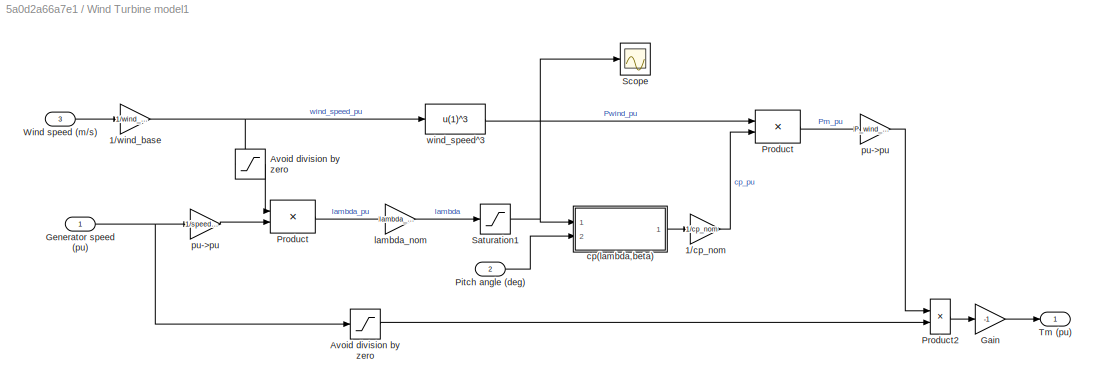
BLOCK [SubSystem] Wind Turbine model1
  AncestorBlock = DRlib/Wind Generation/Wind Turbine
  DialogController = POWERSYS.PowerSysDialog
  Ports = [3, 1]
  RequestExecContextInheritance = off
BLOCK [Gain] Wind Turbine model1/1//cp_nom
  Gain = 1/cp_nom
BLOCK [Gain] Wind Turbine model1/1//wind_base
  Gain = 1/wind_base
BLOCK [Saturate] Wind Turbine model1/Avoid division by zero
  InputPortMap = u0
  LowerLimit = 1e-6
  Ports = [1, 1]
  UpperLimit = 1e6
BLOCK [Saturate] Wind Turbine model1/Avoid division by zero 
  InputPortMap = u0
  LowerLimit = 1e-6
  Ports = [1, 1]
  UpperLimit = 1e6
BLOCK [Gain] Wind Turbine model1/Gain
  Gain = -1
BLOCK [Inport] Wind Turbine model1/Generator speed (pu)
  IconDisplay = Port number
BLOCK [Inport] Wind Turbine model1/Pitch angle (deg)
  IconDisplay = Port number
  Port = 2
BLOCK [Product] Wind Turbine model1/Product
  InputSameDT = off
  Inputs = /*
  Ports = [2, 1]
  RndMeth = Floor
BLOCK [Product] Wind Turbine model1/Product 
  InputSameDT = off
  Ports = [2, 1]
  RndMeth = Floor
BLOCK [Product] Wind Turbine model1/Product2
  Inputs = */
  Ports = [2, 1]
  RndMeth = Floor
BLOCK [Saturate] Wind Turbine model1/Saturation1
  InputPortMap = u0
  LowerLimit = 1e-6
  Ports = [1, 1]
  UpperLimit = inf
BLOCK [Scope] Wind Turbine model1/Scope
  Floating = off
  NumInputPorts = 1
  Ports = [1]
  ScopeSpecificationString = Simulink.scopes.TimeScopeBlockCfg('CurrentConfiguration', extmgr.ConfigurationSet(extmgr.Configuration('Core','General UI',true),extmgr.Configuration('Core','Source UI',true),extmgr.Configuration('Sources','WiredSimulink',true,'DataLoggingVariableName','ScopeData10','DataLoggingSaveFormat','StructureWithTime','DataLoggingLimitDataPoints',true,'DataLoggingDecimation','1','DataLoggingDecimateData',t...<+912ch>
BLOCK [Outport] Wind Turbine model1/Tm (pu)
  IconDisplay = Port number
BLOCK [Inport] Wind Turbine model1/Wind speed (m//s)
  IconDisplay = Port number
  Port = 3
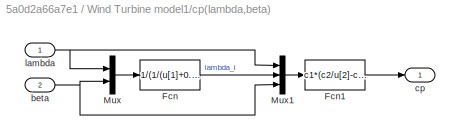
BLOCK [SubSystem] Wind Turbine model1/cp(lambda,beta)
  Ports = [2, 1]
  RequestExecContextInheritance = off
BLOCK [Fcn] Wind Turbine model1/cp(lambda,beta)/Fcn
  Expr = 1/(1/(u[1]+0.08*u[2])-0.035/(u[2]^3+1))
BLOCK [Fcn] Wind Turbine model1/cp(lambda,beta)/Fcn1
  Expr = c1*(c2/u[2]-c3*u[3]-c4)*exp(-c5/u[2])+c6*u[1]
BLOCK [Mux] Wind Turbine model1/cp(lambda,beta)/Mux
  DisplayOption = bar
  Inputs = 2
  Ports = [2, 1]
BLOCK [Mux] Wind Turbine model1/cp(lambda,beta)/Mux1
  DisplayOption = bar
  Inputs = 3
  Ports = [3, 1]
BLOCK [Inport] Wind Turbine model1/cp(lambda,beta)/beta
  IconDisplay = Port number
  Port = 2
BLOCK [Outport] Wind Turbine model1/cp(lambda,beta)/cp
  IconDisplay = Port number
BLOCK [Inport] Wind Turbine model1/cp(lambda,beta)/lambda
  IconDisplay = Port number
BLOCK [Gain] Wind Turbine model1/lambda_nom
  Gain = lambda_nom
BLOCK [Gain] Wind Turbine model1/pu->pu
  Gain = P_wind_base*Pnom/Pelec_base
BLOCK [Gain] Wind Turbine model1/pu->pu 
  Gain = 1/speed_nom
BLOCK [Fcn] Wind Turbine model1/wind_speed^3
  Expr = u(1)^3
BLOCK [ToWorkspace] Wind power
  FixptAsFi = on
  MaxDataPoints = inf
  Ports = [1]
  SampleTime = -1
  SaveFormat = Timeseries
  VariableName = Wind
BLOCK [Reference] carrier  REF=simulink/Sources/Repeating
Sequence
  Ports = [0, 1]
  SourceBlock = simulink/Sources/Repeating\nSequence
  SourceProductBaseCode = SL
  SourceProductName = Simulink
  SourceType = Repeating table
BLOCK [Reference] cm   REF=powerlib/Measurements/Current Measurement
  Ports = [0, 1, 0, 0, 0, 1, 1]
  SourceBlock = powerlib/Measurements/Current Measurement
  SourceProductBaseCode = PS
  SourceProductName = Simscape Electrical
  SourceType = Current Measurement
BLOCK [Scope] genertaor terminal1
  Floating = off
  NumInputPorts = 1
  Ports = [1]
  ScopeSpecificationString = Simulink.scopes.TimeScopeBlockCfg('CurrentConfiguration', extmgr.ConfigurationSet(extmgr.Configuration('Core','General UI',true),extmgr.Configuration('Core','Source UI',true),extmgr.Configuration('Sources','WiredSimulink',true,'DataLogging',true,'DataLoggingVariableName','ScopeData3','DataLoggingSaveFormat','StructureWithTime','SampleTime','100e-6','DataLoggingDecimation','1','DataLoggingDecimateD...<+1663ch>
BLOCK [Reference] load voltage  REF=powerlib/Measurements/Voltage Measurement
  Ports = [0, 1, 0, 0, 0, 2]
  SourceBlock = powerlib/Measurements/Voltage Measurement
  SourceProductBaseCode = PS
  SourceProductName = Simscape Electrical
  SourceType = Voltage Measurement
BLOCK [Display] power4
  Decimation = 1
  Ports = [1]
  SampleTime = 1e-3
BLOCK [Reference] powergui1  REF=powerlib/powergui
  Ports = []
  Priority = 1
  SourceBlock = powerlib/powergui
  SourceProductBaseCode = PS
  SourceProductName = Simscape Electrical
  SourceType = PSB option menu block
BLOCK [Gain] rad//s pu1
  Gain = 1/152.89
BLOCK [Scope] wind power
  Floating = off
  NumInputPorts = 2
  Ports = [2]
  ScopeSpecificationString = Simulink.scopes.TimeScopeBlockCfg('CurrentConfiguration', extmgr.ConfigurationSet(extmgr.Configuration('Core','General UI',true,'FigureColor',[1 1 1]),extmgr.Configuration('Core','Source UI',true),extmgr.Configuration('Sources','WiredSimulink',true,'DataLogging',true,'DataLoggingSaveFormat','StructureWithTime','SampleTime','100e-6','DataLoggingDecimation','1','DataLoggingDecimateData',true,'DataLo...<+2576ch>
BLOCK [Scope] wind power1
  Floating = off
  NumInputPorts = 2
  Ports = [2]
  ScopeSpecificationString = Simulink.scopes.TimeScopeBlockCfg('CurrentConfiguration', extmgr.ConfigurationSet(extmgr.Configuration('Core','General UI',true,'FigureColor',[1 1 1]),extmgr.Configuration('Core','Source UI',true),extmgr.Configuration('Sources','WiredSimulink',true,'DataLogging',true,'DataLoggingSaveFormat','StructureWithTime','SampleTime','100e-6','DataLoggingDecimation','1','DataLoggingDecimateData',true,'DataLo...<+2565ch>
BLOCK [Scope] wind power2
  Floating = off
  NumInputPorts = 2
  Ports = [2]
  ScopeSpecificationString = Simulink.scopes.TimeScopeBlockCfg('CurrentConfiguration', extmgr.ConfigurationSet(extmgr.Configuration('Core','General UI',true,'FigureColor',[1 1 1]),extmgr.Configuration('Core','Source UI',true),extmgr.Configuration('Sources','WiredSimulink',true,'DataLogging',true,'DataLoggingSaveFormat','StructureWithTime','SampleTime','100e-6','DataLoggingDecimation','1','DataLoggingDecimateData',true,'DataLo...<+2584ch>
ANNOTATION (root): Fuzzy 250 W/ M2 = 6.64 W 500 W/M2 = 19.78 W 750 W /M2 = 41.1 W 1000 W/ M2 = 62.08W
ANNOTATION (root): Fuzzy Logic control Based MPPT Techniques for 480 Watts Wind Power System
ANNOTATION (root): Fuzzy Based 60 Watts PV MPPT System
ANNOTATION (root): Gate Pulse
NET 1\ib1:1 -> Mux:2, Product2:1
NET 1\ib4:1 -> Wind power:1, power4:1, wind power:1
LINE Add1:1 -> PID Controller:1
LINE Add:1 -> BMS :1
LINE BMS / Ni-MH battery :1 -> BMS /Scope4:1
NET BMS /Charge :1 -> BMS /BDC:1, BMS /Scope2:1
LINE BMS /Demux:1 -> BMS /Pulse Generator:1
LINE BMS /Demux:2 -> BMS /Pulse Generator1:1
NET BMS /Discharge :1 -> BMS /BC :1, BMS /Scope3:1
LINE BMS /Fuzzy Logic Controller with Ruleviewer:1 -> BMS /Demux:1
LINE BMS /IL1:1 -> BMS /Charge :1
LINE BMS /IL2:1 -> BMS /Discharge :1
LINE BMS /IL6:1 -> BMS /Scope1:1
LINE BMS /Pulse Generator1:1 -> BMS /Mosfet2:1
LINE BMS /Pulse Generator:1 -> BMS /Mosfet1:1
NET BMS /Voltage Measurement:1 -> BMS /Charge :2, BMS /Discharge :2
LINE BMS /fuzzy input :1 -> BMS /Fuzzy Logic Controller with Ruleviewer:1
NET BMS :1 -> MPPT - PV - Wind :3, Scope4:1
NET BMS :2 -> MPPT - PV - Wind :4, Scope9:1
LINE Base Torque1:1 -> Product1:2
NET Bus Selector1:1 -> RPM - GF:1, rad//s pu1:1
LINE Constant1:1 -> Add:3
LINE Constant2:1 -> Base Torque1:1
LINE Constant4:1 -> Base Torque1:2
NET Current Measurement8:1 -> Current:1, Mux12:2, Product8:1
NET Current Measurement9:1 -> Mux1:2, Product9:2, Scope38:1
LINE Current Measurement:1 -> Scope1:1
NET Demux4:2 -> Mosfet5:1, Scope37:1
LINE Demux:1 -> Thyristor:1
LINE Fuzzy Logic Controller with Ruleviewer1:1 -> PWM Generator1:1
NET Fuzzy Logic Controller with Ruleviewer:1 -> P&O MPPT1:2, PWM Generator (2-Level):1
NET IL:1 -> Vab4:1, wind power1:2
LINE MPPT Voltage 1:1 -> Scope2:1
NET MPPT Voltage :1 -> Mux12:1, Mux13:1, Product8:2, Voltage:1
LINE Mean:1 -> Scope8:1
LINE Mux12:1 -> Scope34:1
LINE Mux13:1 -> Scope36:1
LINE Mux1:1 -> Fuzzy Logic Controller with Ruleviewer1:1
LINE Mux:1 -> Fuzzy Logic Controller with Ruleviewer:1
LINE PID Controller:1 -> Relational Operator:1
LINE PMSG:1 -> Bus Selector1:1
NET PV voltage :1 -> Mux13:2, Mux1:1, PV & BPV:1, Product9:1, Scope33:1
LINE PWM Generator (2-Level)1:1 -> Rectifier:1
LINE PWM Generator (2-Level)2:1 -> Universal Bridge:1
LINE PWM Generator (2-Level):1 -> Demux:1
LINE PWM Generator1:1 -> Demux4:1
NET Pitch_angle-controller1/0-pitch_max:1 -> Pitch_angle-controller1/Rate Limiter   :1, Pitch_angle-controller1/genertaor terminal6:2
LINE Pitch_angle-controller1/Constant2:1 -> Pitch_angle-controller1/Sum:2
NET Pitch_angle-controller1/Rate Limiter   :1 -> Pitch_angle-controller1/Pitch_angle:1, Pitch_angle-controller1/genertaor terminal6:1
LINE Pitch_angle-controller1/Sum:1 -> Pitch_angle-controller1/pitch_gain:1
LINE Pitch_angle-controller1/pitch_gain:1 -> Pitch_angle-controller1/0-pitch_max:1
LINE Pitch_angle-controller1/wr:1 -> Pitch_angle-controller1/Sum:1
LINE Pitch_angle-controller1:1 -> Wind Turbine model1:2
LINE Product1:1 -> PMSG:1
NET Product2:1 -> Add:2, Display:1, MPPT - PV - Wind :1, Scope:1
LINE Product4:1 -> 1\ib4:1
NET Product8:1 -> Add:1, Display1:1, MPPT - PV - Wind :2, PVpower:1, Power:1
LINE Product9:1 -> Scope39:1
NET Product:1 -> RMS:1, Scope6:1
NET RMS:1 -> Mean:1, Scope7:1
NET RPM - GF:1 -> P&O MPPT1:1, RPM :1
LINE Relational Operator:1 -> Mosfet:1
NET Speed1:1 -> Wind Turbine model1:3, wind power:2
LINE Speed2:1 -> PV Array:1
LINE TEMP:1 -> PV Array:2
NET Vab3:1 -> Mux:1, Product4:1, wind power2:1
NET Vab4:1 -> 1\ib1:1, Product4:2, wind power2:2
NET Vab:1 -> Vab3:1, wind power1:1
NET Vdc1:1 -> Product2:2, genertaor terminal1:1
NET Voltage Measurement:1 -> Add1:1, Scope1:2
LINE Vref:1 -> Add1:2
LINE Wind Turbine model1:1 -> Product1:1
LINE carrier:1 -> Relational Operator:2
NET cm :1 -> Product:1, Scope5:1
NET load voltage:1 -> Product:2, Scope3:1
NET rad//s pu1:1 -> Pitch_angle-controller1:1, Wind Turbine model1:1
PNET net1: B2 :LConn1 -- IL:RConn1 -- Three-Phase Parallel RLC Load:LConn1
PNET net2: B2 :LConn2 -- PMSG:LConn2 -- Three-Phase Parallel RLC Load:LConn2 -- Vab:LConn2
PNET net3: B2 :LConn3 -- PMSG:LConn3 -- Three-Phase Parallel RLC Load:LConn3
PLINE B2 :RConn1 -- Diode1:LConn1
PLINE B2 :RConn2 -- Diode2:LConn1
PLINE B2 :RConn3 -- Diode3:LConn1
PLINE BMS / Ni-MH battery :LConn1 -- BMS /IL6:LConn1
PNET net4: BMS / Ni-MH battery :LConn2 -- BMS /Conn2:RConn1 -- BMS /Diode1:LConn1 -- BMS /Mosfet2:RConn1 -- BMS /Voltage Measurement:LConn2
PLINE BMS /Breaker:LConn1 -- BMS /Conn1:RConn1
PLINE BMS /Breaker:RConn1 -- BMS /IL1:RConn1
PNET net5: BMS /Diode1:RConn1 -- BMS /Diode:LConn1 -- BMS /L1:RConn1 -- BMS /Mosfet1:RConn1 -- BMS /Mosfet2:LConn1
PNET net6: BMS /Diode:RConn1 -- BMS /IL2:RConn1 -- BMS /Mosfet1:LConn1 -- BMS /Voltage Measurement:LConn1
PLINE BMS /IL1:LConn1 -- BMS /IL2:LConn1
PLINE BMS /IL6:RConn1 -- BMS /L1:LConn1
PNET net7: BMS :RConn1 -- Current Measurement:RConn1 -- Diode5:RConn1 -- MPPT Voltage 1:LConn1 -- RR:LConn1 -- Series RLC Branch2:LConn1 -- Universal Bridge:RConn1 -- Voltage Measurement:LConn1
PNET net8: BMS :RConn2 -- Diode6:RConn1 -- Diode:LConn1 -- MPPT Voltage 1:LConn2 -- R:RConn1 -- RR:RConn1 -- Rectifier:RConn2 -- Series RLC Branch1:RConn1 -- Series RLC Branch2:RConn1 -- Series RLC Branch4:RConn1 -- Thyristor:RConn1 -- Universal Bridge:RConn2 -- Vdc1:LConn2 -- Voltage Measurement:LConn2
PNET net9: Current Measurement8:LConn1 -- Diode9:RConn1 -- Series RLC Branch13:LConn1
PNET net10: Current Measurement8:RConn1 -- Diode5:LConn1 -- MPPT Voltage :LConn1 -- Series RLC Branch15:LConn1
PLINE Current Measurement9:LConn1 -- PV Array:RConn1
PNET net11: Current Measurement9:RConn1 -- PV voltage :LConn1 -- Series RLC Branch14:LConn1
PNET net12: Current Measurement:LConn1 -- Series RLC Branch1:LConn1 -- Series RLC Branch3:LConn1
PLINE Diode1:RConn1 -- Rectifier:LConn1
PLINE Diode2:RConn1 -- Rectifier:LConn2
PLINE Diode3:RConn1 -- Rectifier:LConn3
PNET net13: Diode4:LConn1 -- R:LConn1 -- Rectifier:RConn1 -- Series RLC Branch4:LConn1 -- Thyristor:LConn1 -- Vdc1:LConn1
PLINE Diode4:RConn1 -- Mosfet:LConn1
PNET net14: Diode6:LConn1 -- MPPT Voltage :LConn2 -- Mosfet5:RConn1 -- PV Array:RConn2 -- PV voltage :LConn2 -- Series RLC Branch13:RConn1 -- Series RLC Branch15:RConn1
PNET net15: Diode9:LConn1 -- Mosfet5:LConn1 -- Series RLC Branch14:RConn1
PNET net16: Diode:RConn1 -- Mosfet:RConn1 -- Series RLC Branch:LConn1
PNET net17: IL:LConn1 -- PMSG:LConn1 -- Vab:LConn1
PLINE Series RLC Branch3:RConn1 -- Series RLC Branch:RConn1
PLINE Series RLC Load:LConn1 -- cm :RConn1
PNET net18: Series RLC Load:RConn1 -- Universal Bridge:LConn2 -- load voltage:LConn2
PNET net19: Universal Bridge:LConn1 -- cm :LConn1 -- load voltage:LConn1
note: NET lines group one-source signal fan-out (src -> all destinations, sorted); 1:1 wires keep LINE; PNET lines group multi-terminal physical nets as a canonical sorted terminal list (undirected conserving connections); 2-terminal nets keep the pairwise PLINE form
